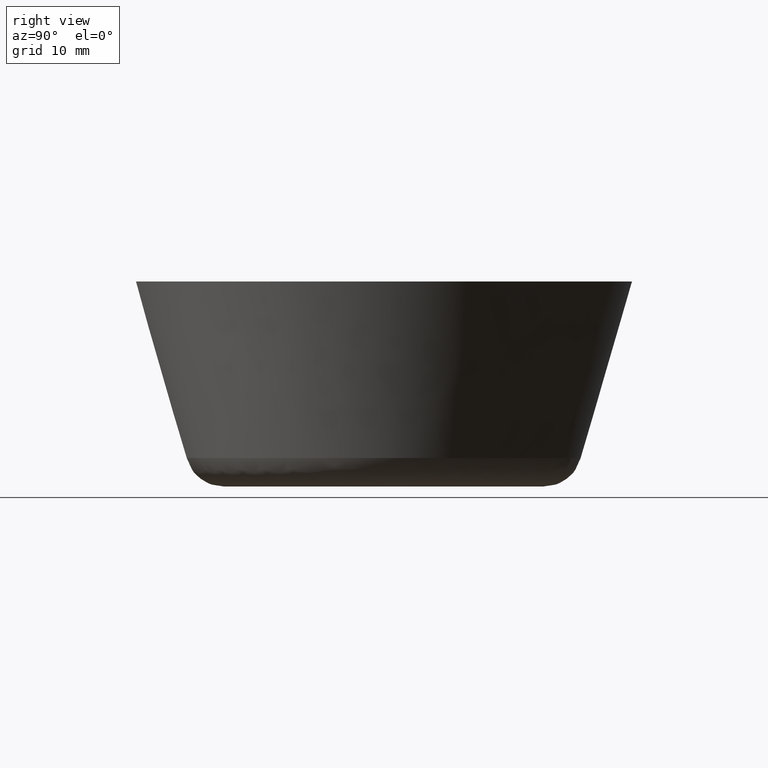
[diagram: clean part render]
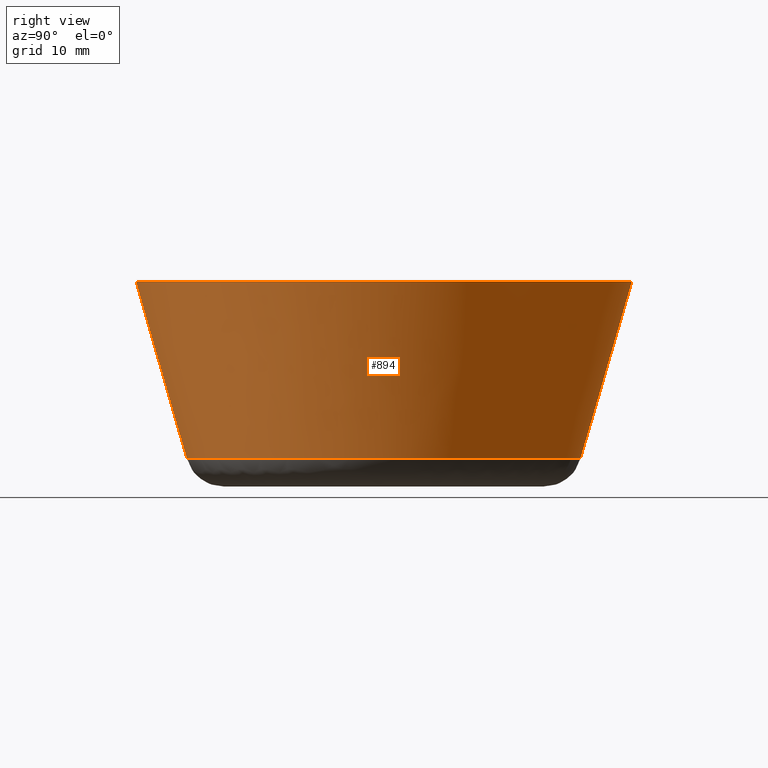
[diagram: same view with one face highlighted and labeled with its STEP entity id]
A machine part, right view. The second image highlights one B-rep face of the part: STEP entity #894.
In plain terms, the highlighted face is a freeform B-spline surface patch.
Its self-contained STEP definition (entity closure, byte-faithful):
#693=CARTESIAN_POINT('',(1.964796795045842,-24.965356706877639,3.614183215701587));
#694=VERTEX_POINT('',#693);
#695=CARTESIAN_POINT('',(-23.286182837838449,-9.213213582374392,3.614193855778152));
#696=VERTEX_POINT('',#695);
#712=CARTESIAN_POINT('',(2.471443264647377,-31.402893684112271,25.999986988792958));
#713=VERTEX_POINT('',#712);
#714=CARTESIAN_POINT('',(1.964796795045842,-24.965356706877639,3.614183215701587));
#715=CARTESIAN_POINT('',(2.471443264647377,-31.402893684112271,25.999986988792958));
#716=QUASI_UNIFORM_CURVE('',1,(#714,#715),.UNSPECIFIED.,.F.,.U.);
#717=EDGE_CURVE('',#694,#713,#716,.T.);
#719=CARTESIAN_POINT('',(-29.290729468696490,-11.588913489933820,25.999986171061011));
#720=VERTEX_POINT('',#719);
#736=CARTESIAN_POINT('',(-23.286182837838449,-9.213213582374392,3.614193855778152));
#737=CARTESIAN_POINT('',(-29.290729468696490,-11.588913489933820,25.999986171061011));
#738=QUASI_UNIFORM_CURVE('',1,(#736,#737),.UNSPECIFIED.,.F.,.U.);
#739=EDGE_CURVE('',#696,#720,#738,.T.);
#744=CARTESIAN_POINT('',(1.952150248378111,-24.804420731666379,3.054551920910266));
#745=CARTESIAN_POINT('',(26.756570980044494,-22.852270483288272,3.054551920910266));
#746=CARTESIAN_POINT('',(24.804420731666379,1.952150248378111,3.054551920910266));
#747=CARTESIAN_POINT('',(22.852270483288272,26.756570980044494,3.054551920910266));
#748=CARTESIAN_POINT('',(-1.952150248378111,24.804420731666379,3.054551920910266));
#749=CARTESIAN_POINT('',(-26.756570980044494,22.852270483288272,3.054551920910266));
#750=CARTESIAN_POINT('',(-24.804420731666379,-1.952150248378111,3.054551920910266));
#751=CARTESIAN_POINT('',(-24.511166564575824,-5.678297735167061,3.054551920910266));
#752=CARTESIAN_POINT('',(-23.136069071193617,-9.153823592287615,3.054551920910266));
#753=CARTESIAN_POINT('',(2.484444297103360,-31.567857894616701,26.573636201977241));
#754=CARTESIAN_POINT('',(34.052302191720059,-29.083413597513342,26.573636201977244));
#755=CARTESIAN_POINT('',(31.567857894616701,2.484444297103360,26.573636201977241));
#756=CARTESIAN_POINT('',(29.083413597513342,34.052302191720059,26.573636201977244));
#757=CARTESIAN_POINT('',(-2.484444297103360,31.567857894616701,26.573636201977241));
#758=CARTESIAN_POINT('',(-34.052302191720059,29.083413597513342,26.573636201977244));
#759=CARTESIAN_POINT('',(-31.567857894616701,-2.484444297103360,26.573636201977241));
#760=CARTESIAN_POINT('',(-31.194641927436283,-7.226602786907145,26.573636201977237));
#761=CARTESIAN_POINT('',(-29.444595726723545,-11.649802488022551,26.573636201977241));
#769=(BOUNDED_SURFACE()B_SPLINE_SURFACE(2,1,((#744,#753),(#745,#754),(#746,#755),(#747,#756),(#748,#757),(#749,#758),(#750,#759),(#751,#760),(#752,#761)),.UNSPECIFIED.,.F.,.F.,.U.)B_SPLINE_SURFACE_WITH_KNOTS((3,2,2,2,3),(2,2),(0.0,52.465071807116082,104.930143614232190,157.395215421348210,167.888229782771500),(0.0,24.478046176756379),.UNSPECIFIED.)GEOMETRIC_REPRESENTATION_ITEM()RATIONAL_B_SPLINE_SURFACE(((1.0,1.0),(0.707106781186548,0.707106781186548),(1.0,1.0),(0.707106781186548,0.707106781186548),(1.0,1.0),(0.707106781186548,0.707106781186548),(1.0,1.0),(0.941421356237310,0.941421356237310),(0.906274169979695,0.906274169979695)))REPRESENTATION_ITEM('')SURFACE());
#770=CARTESIAN_POINT('',(-25.042556999999949,0.0,3.614197000000105));
#771=VERTEX_POINT('',#770);
#772=CARTESIAN_POINT('',(-23.286182837838446,-9.213213582374392,3.614193855778151));
#773=CARTESIAN_POINT('',(-25.042556578312364,-4.774021075879326,3.614195427889129));
#774=CARTESIAN_POINT('',(-25.042556999999949,0.0,3.614197000000105));
#782=(BOUNDED_CURVE()B_SPLINE_CURVE(2,(#772,#773,#774),.UNSPECIFIED.,.F.,.U.)B_SPLINE_CURVE_WITH_KNOTS((3,3),(0.937532566109869,1.0),.UNSPECIFIED.)CURVE()GEOMETRIC_REPRESENTATION_ITEM()RATIONAL_B_SPLINE_CURVE((0.890203206456037,0.926814848867612,1.0))REPRESENTATION_ITEM(''));
#783=EDGE_CURVE('',#696,#771,#782,.T.);
#784=ORIENTED_EDGE('',*,*,#783,.F.);
#785=ORIENTED_EDGE('',*,*,#739,.T.);
#786=CARTESIAN_POINT('',(-31.500000000000000,0.0,26.0));
#787=VERTEX_POINT('',#786);
#788=CARTESIAN_POINT('',(-29.290729468696490,-11.588913489933823,25.999986171061011));
#789=CARTESIAN_POINT('',(-31.499998145329961,-6.005039871537067,25.999993085530512));
#790=CARTESIAN_POINT('',(-31.500000000000000,0.0,26.0));
#798=(BOUNDED_CURVE()B_SPLINE_CURVE(2,(#788,#789,#790),.UNSPECIFIED.,.F.,.U.)B_SPLINE_CURVE_WITH_KNOTS((3,3),(0.937532603646275,1.0),.UNSPECIFIED.)CURVE()GEOMETRIC_REPRESENTATION_ITEM()RATIONAL_B_SPLINE_CURVE((0.890203250455600,0.926814892844247,1.0))REPRESENTATION_ITEM(''));
#799=EDGE_CURVE('',#720,#787,#798,.T.);
#800=ORIENTED_EDGE('',*,*,#799,.T.);
#801=CARTESIAN_POINT('',(31.500000000000000,0.0,26.0));
#802=VERTEX_POINT('',#801);
#803=CARTESIAN_POINT('',(-31.500000000000000,0.0,26.0));
#804=CARTESIAN_POINT('',(-31.500000000000007,31.500000000000007,26.000000000000007));
#805=CARTESIAN_POINT('',(0.0,31.500000000000000,26.0));
#806=CARTESIAN_POINT('',(31.500000000000007,31.500000000000007,26.000000000000007));
#807=CARTESIAN_POINT('',(31.500000000000000,0.0,26.0));
#815=(BOUNDED_CURVE()B_SPLINE_CURVE(2,(#803,#804,#805,#806,#807),.UNSPECIFIED.,.F.,.U.)B_SPLINE_CURVE_WITH_KNOTS((3,2,3),(0.0,0.250000000000000,0.500000000000000),.UNSPECIFIED.)CURVE()GEOMETRIC_REPRESENTATION_ITEM()RATIONAL_B_SPLINE_CURVE((1.0,0.707106781186547,1.0,0.707106781186547,1.0))REPRESENTATION_ITEM(''));
#816=EDGE_CURVE('',#787,#802,#815,.T.);
#817=ORIENTED_EDGE('',*,*,#816,.T.);
#818=CARTESIAN_POINT('',(31.500000000000000,0.0,26.0));
#819=CARTESIAN_POINT('',(31.499999852763246,-29.118315317853565,25.999993494396488));
#820=CARTESIAN_POINT('',(2.471443264647377,-31.402893684112271,25.999986988792958));
#828=(BOUNDED_CURVE()B_SPLINE_CURVE(2,(#818,#819,#820),.UNSPECIFIED.,.F.,.U.)B_SPLINE_CURVE_WITH_KNOTS((3,3),(0.500000000000000,0.736331398654010),.UNSPECIFIED.)CURVE()GEOMETRIC_REPRESENTATION_ITEM()RATIONAL_B_SPLINE_CURVE((1.0,0.723120543766167,0.969723560734762))REPRESENTATION_ITEM(''));
#829=EDGE_CURVE('',#802,#713,#828,.T.);
#830=ORIENTED_EDGE('',*,*,#829,.T.);
#831=ORIENTED_EDGE('',*,*,#717,.F.);
#832=CARTESIAN_POINT('',(25.042556999999949,0.0,3.614197000000105));
#833=VERTEX_POINT('',#832);
#834=CARTESIAN_POINT('',(25.042556999999949,0.0,3.614197000000105));
#835=CARTESIAN_POINT('',(25.042556844015103,-23.149117518880452,3.614190107850846));
#836=CARTESIAN_POINT('',(1.964796795045843,-24.965356706877639,3.614183215701587));
#844=(BOUNDED_CURVE()B_SPLINE_CURVE(2,(#834,#835,#836),.UNSPECIFIED.,.F.,.U.)B_SPLINE_CURVE_WITH_KNOTS((3,3),(0.500000000000000,0.736331432949555),.UNSPECIFIED.)CURVE()GEOMETRIC_REPRESENTATION_ITEM()RATIONAL_B_SPLINE_CURVE((1.0,0.723120503586436,0.969723632307023))REPRESENTATION_ITEM(''));
#845=EDGE_CURVE('',#833,#694,#844,.T.);
#846=ORIENTED_EDGE('',*,*,#845,.F.);
#847=CARTESIAN_POINT('',(7.904105843229777,23.762465625612439,3.614196996014758));
#848=VERTEX_POINT('',#847);
#849=CARTESIAN_POINT('',(7.904105843229777,23.762465625612432,3.614196996014758));
#850=CARTESIAN_POINT('',(25.042556999999960,18.061704837062404,3.614197000000105));
#851=CARTESIAN_POINT('',(25.042556999999949,0.0,3.614197000000105));
#859=(BOUNDED_CURVE()B_SPLINE_CURVE(2,(#849,#850,#851),.UNSPECIFIED.,.F.,.U.)B_SPLINE_CURVE_WITH_KNOTS((3,3),(0.303659303332147,0.500000000000000),.UNSPECIFIED.)CURVE()GEOMETRIC_REPRESENTATION_ITEM()RATIONAL_B_SPLINE_CURVE((0.901255104929078,0.769972565475507,1.0))REPRESENTATION_ITEM(''));
#860=EDGE_CURVE('',#848,#833,#859,.T.);
#861=ORIENTED_EDGE('',*,*,#860,.F.);
#862=CARTESIAN_POINT('',(-24.175624730555271,6.532138292832401,3.614196996010016));
#863=VERTEX_POINT('',#862);
#864=CARTESIAN_POINT('',(-24.175624730555267,6.532138292832401,3.614196996010016));
#865=CARTESIAN_POINT('',(-19.174198023007886,25.042556999999949,3.614197000000105));
#866=CARTESIAN_POINT('',(0.0,25.042556999999949,3.614197000000105));
#867=CARTESIAN_POINT('',(4.055710056229796,25.042556999999945,3.614197000000106));
#868=CARTESIAN_POINT('',(7.904105843229777,23.762465625612435,3.614196996014758));
#876=(BOUNDED_CURVE()B_SPLINE_CURVE(2,(#864,#865,#866,#867,#868),.UNSPECIFIED.,.F.,.U.)B_SPLINE_CURVE_WITH_KNOTS((3,2,3),(0.044477792329169,0.250000000000000,0.303659303332146),.UNSPECIFIED.)CURVE()GEOMETRIC_REPRESENTATION_ITEM()RATIONAL_B_SPLINE_CURVE((0.914323587275900,0.759215756230574,1.0,0.937134215711041,0.901255104929078))REPRESENTATION_ITEM(''));
#877=EDGE_CURVE('',#863,#848,#876,.T.);
#878=ORIENTED_EDGE('',*,*,#877,.F.);
#879=CARTESIAN_POINT('',(-25.042556999999949,0.0,3.614197000000105));
#880=CARTESIAN_POINT('',(-25.042556999999952,3.323597900870759,3.614197000000105));
#881=CARTESIAN_POINT('',(-24.175624730555274,6.532138292832402,3.614196996010016));
#889=(BOUNDED_CURVE()B_SPLINE_CURVE(2,(#879,#880,#881),.UNSPECIFIED.,.F.,.U.)B_SPLINE_CURVE_WITH_KNOTS((3,3),(0.0,0.044477792329169),.UNSPECIFIED.)CURVE()GEOMETRIC_REPRESENTATION_ITEM()RATIONAL_B_SPLINE_CURVE((1.0,0.947891024955973,0.914323587275899))REPRESENTATION_ITEM(''));
#890=EDGE_CURVE('',#771,#863,#889,.T.);
#891=ORIENTED_EDGE('',*,*,#890,.F.);
#892=EDGE_LOOP('',(#784,#785,#800,#817,#830,#831,#846,#861,#878,#891));
#893=FACE_OUTER_BOUND('',#892,.T.);
#894=ADVANCED_FACE('',(#893),#769,.T.);